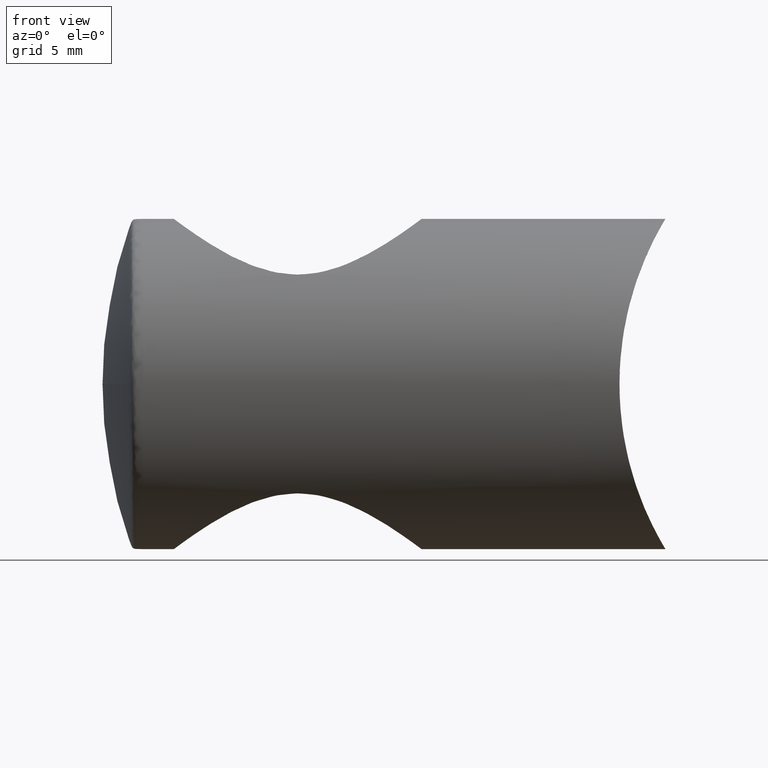
[diagram: clean part render]
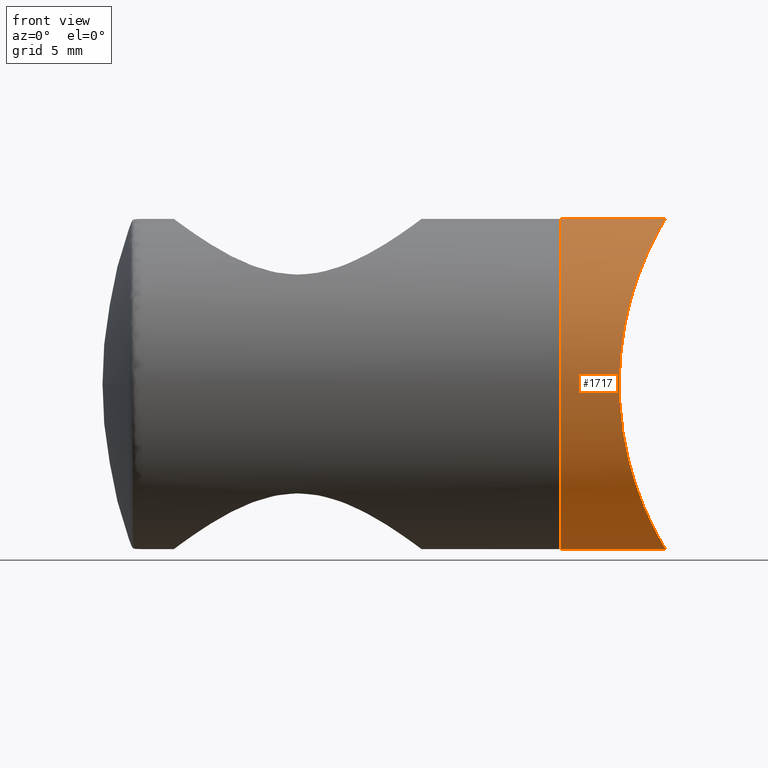
[diagram: same view with one face highlighted and labeled with its STEP entity id]
A machine part, front view. The second image highlights one B-rep face of the part: STEP entity #1717.
In plain terms, the highlighted cylindrical surface (partial cylindrical patch) has radius 11 mm, axis along (1, 0, 0).
Its self-contained STEP definition (entity closure, byte-faithful):
#20 = CARTESIAN_POINT ( 'NONE',  ( -4.490709630173149900, -6.724453605045668200, 8.734043508533428500 ) ) ;
#42 = CARTESIAN_POINT ( 'NONE',  ( -5.548186413728223500, -9.323271942584385700, -5.848297507294098800 ) ) ;
#59 = CARTESIAN_POINT ( 'NONE',  ( -3.941904002395181900, -4.908488135195015400, -9.850666380876806000 ) ) ;
#75 = CARTESIAN_POINT ( 'NONE',  ( -6.330006373517217200, -10.92637640658306000, 1.468629860942958400 ) ) ;
#98 = CIRCLE ( 'NONE', #574, 11.00000000000000000 ) ;
#375 = CARTESIAN_POINT ( 'NONE',  ( -10.28848920863309300, 0.0000000000000000000, -11.00000000000000000 ) ) ;
#430 = CARTESIAN_POINT ( 'NONE',  ( -5.868320005733874500, -10.00287982636541700, 4.590237190317497900 ) ) ;
#450 = CARTESIAN_POINT ( 'NONE',  ( -5.278439506718029900, -8.723353256371643400, 6.738838544231796800 ) ) ;
#469 = CARTESIAN_POINT ( 'NONE',  ( -5.369908322347864500, -8.926851390718871600, -6.437181657932630000 ) ) ;
#486 = CARTESIAN_POINT ( 'NONE',  ( -3.380030803900725600, -1.829027753977978500, 10.85296209476051700 ) ) ;
#505 = CARTESIAN_POINT ( 'NONE',  ( -4.692779037583785700, -7.277889617255239900, 8.278218378204764200 ) ) ;
#574 = AXIS2_PLACEMENT_3D ( 'NONE', #2645, #4774, #2225 ) ;
#738 = EDGE_CURVE ( 'NONE', #3714, #2964, #1371, .T. ) ;
#818 = DIRECTION ( 'NONE',  ( 0.0000000000000000000, 0.0000000000000000000, -1.000000000000000000 ) ) ;
#841 = ORIENTED_EDGE ( 'NONE', *, *, #4370, .F. ) ;
#877 = CARTESIAN_POINT ( 'NONE',  ( -3.346982620557487700, -1.467137269218577800, 10.90798967704335700 ) ) ;
#892 = FACE_OUTER_BOUND ( 'NONE', #1106, .T. ) ;
#899 = CARTESIAN_POINT ( 'NONE',  ( -6.293482106308681900, -10.85491489367107000, -1.817734624578886300 ) ) ;
#934 = CARTESIAN_POINT ( 'NONE',  ( -4.116926533251416700, -5.540345639009706800, -9.509650578280615100 ) ) ;
#1091 = CYLINDRICAL_SURFACE ( 'NONE', #4213, 11.00000000000000000 ) ;
#1106 = EDGE_LOOP ( 'NONE', ( #4369, #3386, #1766, #841 ) ) ;
#1291 = CARTESIAN_POINT ( 'NONE',  ( -6.180035569390341300, -10.63301336070357400, 2.912318993154341000 ) ) ;
#1310 = CARTESIAN_POINT ( 'NONE',  ( -5.085840857852923900, -8.274701243837389700, 7.281888225140145100 ) ) ;
#1346 = CARTESIAN_POINT ( 'NONE',  ( -3.507974913573687300, -2.897777927370265500, 10.63632446403208000 ) ) ;
#1370 = CARTESIAN_POINT ( 'NONE',  ( -3.291402881660392400, -2.274289781838102900E-016, -11.00000000000000000 ) ) ;
#1371 = LINE ( 'NONE', #2991, #3571 ) ;
#1391 = EDGE_CURVE ( 'NONE', #3714, #3782, #98, .T. ) ;
#1514 = EDGE_CURVE ( 'NONE', #3782, #2775, #5459, .T. ) ;
#1712 = CARTESIAN_POINT ( 'NONE',  ( -5.633420184269703600, -9.507679731304991200, -5.543684916486238700 ) ) ;
#1717 = ADVANCED_FACE ( 'NONE', ( #892 ), #1091, .T. ) ;
#1744 = CARTESIAN_POINT ( 'NONE',  ( -6.182695475454612400, -10.63824584753105800, -2.891551719134194600 ) ) ;
#1763 = CARTESIAN_POINT ( 'NONE',  ( -3.634057989465557400, -3.598343979279314400, -10.41929893535792400 ) ) ;
#1766 = ORIENTED_EDGE ( 'NONE', *, *, #1514, .T. ) ;
#1778 = DIRECTION ( 'NONE',  ( 1.000000000000000000, -0.0000000000000000000, -0.0000000000000000000 ) ) ;
#2099 = CARTESIAN_POINT ( 'NONE',  ( 0.0000000000000000000, 0.0000000000000000000, 0.0000000000000000000 ) ) ;
#2134 = CARTESIAN_POINT ( 'NONE',  ( -3.381225672906258400, -1.841104368664524300, -10.85096302878594100 ) ) ;
#2153 = CARTESIAN_POINT ( 'NONE',  ( -5.633759583517488100, -9.508407177725029400, 5.542411536659647800 ) ) ;
#2174 = CARTESIAN_POINT ( 'NONE',  ( -5.793889700617381100, -9.848335874158774300, -4.913114779455304100 ) ) ;
#2191 = CARTESIAN_POINT ( 'NONE',  ( -3.510356507188221000, -2.913362166776769500, -10.63224231659406400 ) ) ;
#2225 = DIRECTION ( 'NONE',  ( 0.0000000000000000000, 0.0000000000000000000, -1.000000000000000000 ) ) ;
#2390 = CARTESIAN_POINT ( 'NONE',  ( -10.28848920863309300, 1.347111479062088400E-015, 11.00000000000000000 ) ) ;
#2401 = CARTESIAN_POINT ( 'NONE',  ( -3.291402881660392400, -2.274289781838102900E-016, -11.00000000000000000 ) ) ;
#2404 = B_SPLINE_CURVE_WITH_KNOTS ( 'NONE', 3,
 ( #5082, #3418, #4703, #877, #486, #1346, #5154, #4329, #5101, #20, #505, #1310, #450, #4292, #2153, #5117, #430, #3470, #1291, #75, #3848, #4738, #2611, #4313, #899, #1744, #2591, #2572, #2174, #1712, #42, #469, #3896, #3055, #4720, #3491, #4275, #5135, #934, #59, #2534, #1763, #2191, #2134, #2998, #3918, #4344, #1370 ),
 .UNSPECIFIED., .F., .F.,
 ( 4, 2, 2, 2, 2, 2, 2, 2, 2, 2, 2, 2, 2, 2, 2, 2, 2, 2, 2, 2, 2, 2, 2, 4 ),
 ( 0.03503821165714128500, 0.03613092011666060200, 0.03722362857617991800, 0.03940904549521855700, 0.04159446241425719000, 0.04377987933329582900, 0.04596529625233446900, 0.04705800471185378500, 0.04815071317137310100, 0.05033613009041174000, 0.05252154700945038000, 0.05361425546896969600, 0.05470696392848901200, 0.05689238084752765200, 0.05798508930704697500, 0.05907779776656629100, 0.06017050622608560700, 0.06126321468560493000, 0.06344863160464356300, 0.06454134006416288600, 0.06563404852368220900, 0.06781946544272085500, 0.06891217390224016500, 0.07000488236175948800 ),
 .UNSPECIFIED. ) ;
#2491 = CARTESIAN_POINT ( 'NONE',  ( -3.291402881660392900, 1.347102484281198300E-015, 11.00000000000000000 ) ) ;
#2534 = CARTESIAN_POINT ( 'NONE',  ( -3.859889123774599400, -4.585972419906418000, -10.00481506017224100 ) ) ;
#2572 = CARTESIAN_POINT ( 'NONE',  ( -5.869485603073061800, -10.00530734025665900, -4.585308037737513900 ) ) ;
#2591 = CARTESIAN_POINT ( 'NONE',  ( -6.074644399835430700, -10.42530660844774500, -3.582998913702255100 ) ) ;
#2611 = CARTESIAN_POINT ( 'NONE',  ( -6.359476524504037400, -10.98266402210707900, -0.7187168262460426100 ) ) ;
#2645 = CARTESIAN_POINT ( 'NONE',  ( -10.28848920863309300, 0.0000000000000000000, 0.0000000000000000000 ) ) ;
#2775 = VERTEX_POINT ( 'NONE', #2401 ) ;
#2964 = VERTEX_POINT ( 'NONE', #2491 ) ;
#2991 = CARTESIAN_POINT ( 'NONE',  ( 0.0000000000000000000, 1.347111479062088400E-015, 11.00000000000000000 ) ) ;
#2998 = CARTESIAN_POINT ( 'NONE',  ( -3.347590592083557100, -1.474469861187491800, -10.90697733454603500 ) ) ;
#3055 = CARTESIAN_POINT ( 'NONE',  ( -5.085103830285090600, -8.262774114066514700, -7.269998658045741600 ) ) ;
#3386 = ORIENTED_EDGE ( 'NONE', *, *, #1391, .T. ) ;
#3418 = CARTESIAN_POINT ( 'NONE',  ( -3.291402881660390600, -0.3647244308353442300, 10.99999999999999800 ) ) ;
#3470 = CARTESIAN_POINT ( 'NONE',  ( -6.071234317461454000, -10.41840641619782600, 3.601157714299144900 ) ) ;
#3491 = CARTESIAN_POINT ( 'NONE',  ( -4.690006164174655500, -7.270596710023314200, -8.284891255949849800 ) ) ;
#3571 = VECTOR ( 'NONE', #3820, 1000.000000000000000 ) ;
#3714 = VERTEX_POINT ( 'NONE', #2390 ) ;
#3782 = VERTEX_POINT ( 'NONE', #375 ) ;
#3820 = DIRECTION ( 'NONE',  ( 1.000000000000000000, -0.0000000000000000000, -0.0000000000000000000 ) ) ;
#3848 = CARTESIAN_POINT ( 'NONE',  ( -6.368091586500113100, -10.99923367340429100, 0.7408850516670828500 ) ) ;
#3896 = CARTESIAN_POINT ( 'NONE',  ( -5.276858353723310900, -8.714838366137481500, -6.721451390895632400 ) ) ;
#3918 = CARTESIAN_POINT ( 'NONE',  ( -3.302803907762045500, -0.7400701783101820700, -10.98128007470108800 ) ) ;
#4213 = AXIS2_PLACEMENT_3D ( 'NONE', #2099, #5060, #818 ) ;
#4275 = CARTESIAN_POINT ( 'NONE',  ( -4.491786270825179500, -6.727512491585652100, -8.731662979538571200 ) ) ;
#4292 = CARTESIAN_POINT ( 'NONE',  ( -5.547281599004497500, -9.321313054010170500, 5.851523920254278400 ) ) ;
#4313 = CARTESIAN_POINT ( 'NONE',  ( -6.321938567647825900, -10.91005890843320500, -1.451233100963368800 ) ) ;
#4329 = CARTESIAN_POINT ( 'NONE',  ( -3.937100917514782000, -4.923655365283909000, 9.863104022387879900 ) ) ;
#4344 = CARTESIAN_POINT ( 'NONE',  ( -3.291402881660388000, -0.3701546221762748200, -10.99999999999999600 ) ) ;
#4369 = ORIENTED_EDGE ( 'NONE', *, *, #738, .F. ) ;
#4370 = EDGE_CURVE ( 'NONE', #2964, #2775, #2404, .T. ) ;
#4703 = CARTESIAN_POINT ( 'NONE',  ( -3.302433246263262800, -0.7312970663514786200, 10.98189123794077700 ) ) ;
#4720 = CARTESIAN_POINT ( 'NONE',  ( -4.986140293831235600, -8.021987447212293200, -7.534783826192191100 ) ) ;
#4738 = CARTESIAN_POINT ( 'NONE',  ( -6.368683368295651600, -11.00037419877215300, -0.3532428378205904100 ) ) ;
#4751 = VECTOR ( 'NONE', #1778, 1000.000000000000000 ) ;
#4774 = DIRECTION ( 'NONE',  ( 1.000000000000000000, -0.0000000000000000000, -0.0000000000000000000 ) ) ;
#5060 = DIRECTION ( 'NONE',  ( 1.000000000000000000, -0.0000000000000000000, -0.0000000000000000000 ) ) ;
#5082 = CARTESIAN_POINT ( 'NONE',  ( -3.291402881660392900, 1.347102484281198300E-015, 11.00000000000000000 ) ) ;
#5101 = CARTESIAN_POINT ( 'NONE',  ( -4.113607136787504000, -5.548654573814246800, 9.524401541086811900 ) ) ;
#5117 = CARTESIAN_POINT ( 'NONE',  ( -5.794029478011489200, -9.848625637318225000, 4.912505038681279000 ) ) ;
#5135 = CARTESIAN_POINT ( 'NONE',  ( -4.209009580152792500, -5.846265454196958100, -9.324511832650253900 ) ) ;
#5154 = CARTESIAN_POINT ( 'NONE',  ( -3.632085611284317400, -3.589705948585964800, 10.42291774481692100 ) ) ;
#5183 = CARTESIAN_POINT ( 'NONE',  ( 0.0000000000000000000, 0.0000000000000000000, -11.00000000000000000 ) ) ;
#5459 = LINE ( 'NONE', #5183, #4751 ) ;